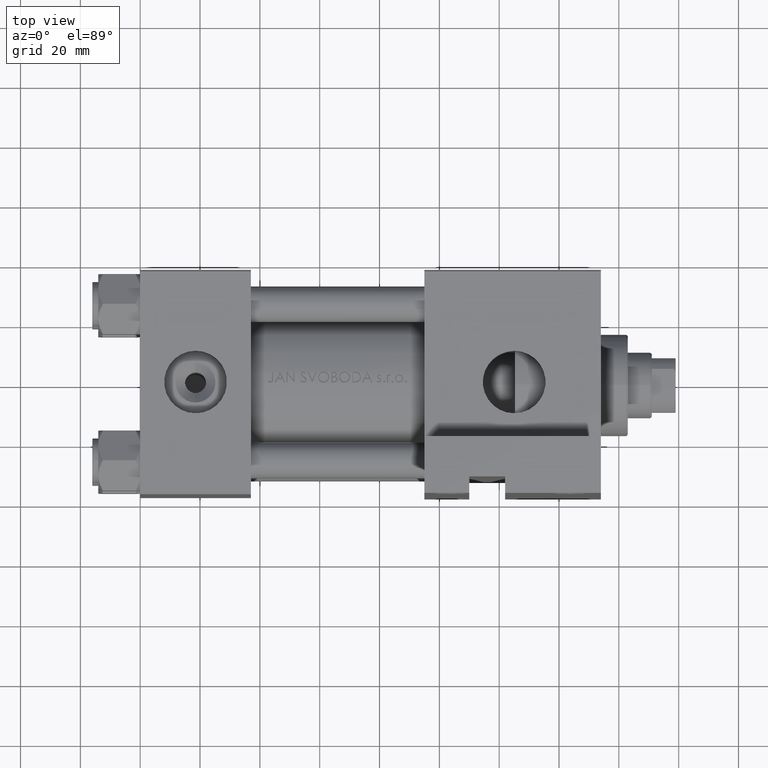
[diagram: clean part render]
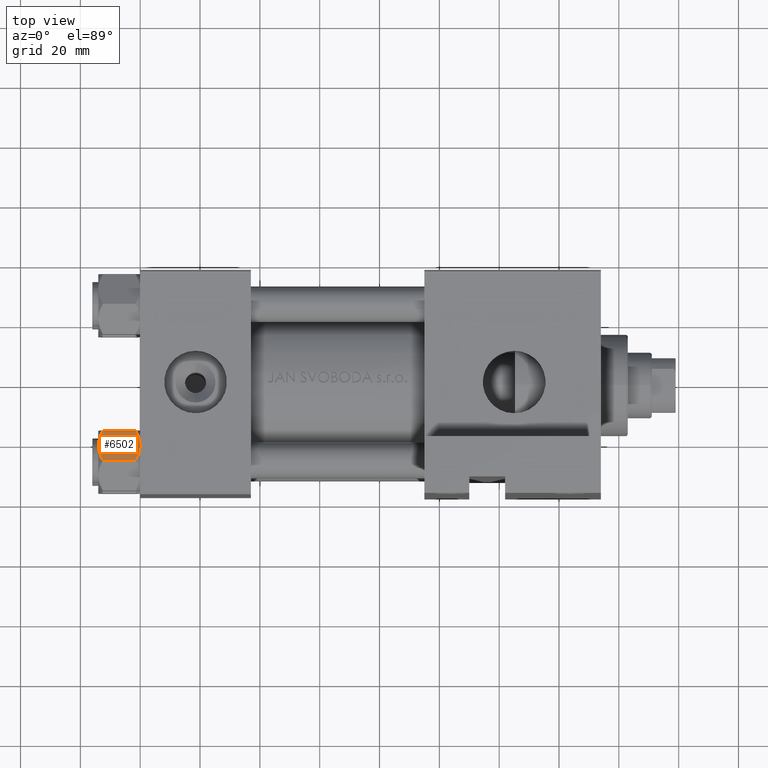
[diagram: same view with one face highlighted and labeled with its STEP entity id]
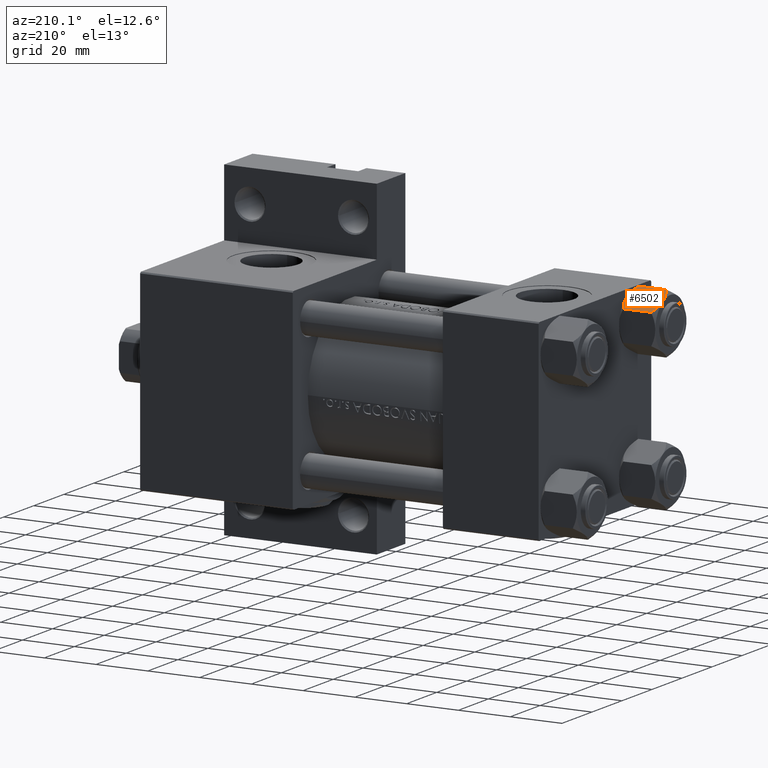
[diagram: same view with one face highlighted and labeled with its STEP entity id]
A machine part, top view. The second image highlights one B-rep face of the part: STEP entity #6502.
A second angle (auxiliary view) of the same face is appended — the face is thin or edge-on in the first view.
In plain terms, the highlighted planar face has unit normal (0, -0.5, -0.866).
Its self-contained STEP definition (entity closure, byte-faithful):
#554 = VERTEX_POINT ( 'NONE', #6987 ) ;
#937 = CARTESIAN_POINT ( 'NONE',  ( -11.61999999999999922, 6.288644352490894150E-15, -14.00000000000000000 ) ) ;
#1141 = CARTESIAN_POINT ( 'NONE',  ( -11.61999999999999922, 6.270720075409452187E-15, -1.556784808024810562 ) ) ;
#1276 = VERTEX_POINT ( 'NONE', #22606 ) ;
#1688 = B_SPLINE_CURVE_WITH_KNOTS ( 'NONE', 3,
 ( #1141, #16440, #28240, #43589, #24489, #12694, #28006, #9423 ),
 .UNSPECIFIED., .F., .F.,
 ( 4, 2, 2, 4 ),
 ( 2.544312114893457383E-07, 0.003011550106433538623, 0.004517197944044561847, 0.006022845781655586372 ),
 .UNSPECIFIED. ) ;
#1957 = VERTEX_POINT ( 'NONE', #29485 ) ;
#3110 = ORIENTED_EDGE ( 'NONE', *, *, #38992, .F. ) ;
#4695 = CARTESIAN_POINT ( 'NONE',  ( -6.265545725125283738, -9.274186850887380373, -12.89876091710046779 ) ) ;
#4716 = B_SPLINE_CURVE_WITH_KNOTS ( 'NONE', 3,
 ( #40492, #26346, #28924, #33626, #5578, #48966 ),
 .UNSPECIFIED., .F., .F.,
 ( 4, 2, 4 ),
 ( 0.006022845781655596781, 0.009013049135303641962, 0.01200325248895168714 ),
 .UNSPECIFIED. ) ;
#4762 = FACE_OUTER_BOUND ( 'NONE', #45144, .T. ) ;
#5316 = EDGE_CURVE ( 'NONE', #554, #11487, #22876, .T. ) ;
#5578 = CARTESIAN_POINT ( 'NONE',  ( -11.16498164529022219, -0.7881149087337223635, -12.89823354668505040 ) ) ;
#6502 = ADVANCED_FACE ( 'NONE', ( #4762 ), #16788, .F. ) ;
#6987 = CARTESIAN_POINT ( 'NONE',  ( -8.715000000000006963, -5.031607595987586556, 0.000000000000000000 ) ) ;
#7369 = DIRECTION ( 'NONE',  ( -0.000000000000000000, -0.000000000000000000, 1.000000000000000000 ) ) ;
#8221 = LINE ( 'NONE', #937, #40331 ) ;
#8335 = VERTEX_POINT ( 'NONE', #46448 ) ;
#9423 = CARTESIAN_POINT ( 'NONE',  ( -8.715000000000006963, -5.031607595987586556, 0.000000000000000000 ) ) ;
#11193 = ORIENTED_EDGE ( 'NONE', *, *, #14947, .F. ) ;
#11487 = VERTEX_POINT ( 'NONE', #23707 ) ;
#11499 = DIRECTION ( 'NONE',  ( -0.000000000000000000, -0.000000000000000000, 1.000000000000000000 ) ) ;
#11987 = CARTESIAN_POINT ( 'NONE',  ( -5.810000000000000497, -10.06321519197517844, -12.44321519197518633 ) ) ;
#12304 = DIRECTION ( 'NONE',  ( 0.8660254037844390407, 0.4999999999999995004, 0.000000000000000000 ) ) ;
#12694 = CARTESIAN_POINT ( 'NONE',  ( -9.227666995912100489, -4.143642311704120118, -0.03994118060690279165 ) ) ;
#12727 = CARTESIAN_POINT ( 'NONE',  ( -7.455303369716809847, -7.213466161761383333, -13.69973261901326644 ) ) ;
#12964 = CARTESIAN_POINT ( 'NONE',  ( -8.202333004087902779, -5.919572880271047666, -13.96005881939309745 ) ) ;
#13079 = AXIS2_PLACEMENT_3D ( 'NONE', #35649, #12304, #32367 ) ;
#14947 = EDGE_CURVE ( 'NONE', #8335, #1957, #8221, .T. ) ;
#15117 = CARTESIAN_POINT ( 'NONE',  ( -6.265018354709776638, -9.275100283241451748, -1.101766453314952043 ) ) ;
#16440 = CARTESIAN_POINT ( 'NONE',  ( -11.16445427487471420, -0.7890283410877914072, -1.101239082899528432 ) ) ;
#16788 = PLANE ( 'NONE',  #13079 ) ;
#19630 = CARTESIAN_POINT ( 'NONE',  ( -8.715000000000006963, -5.031607595987586556, 0.000000000000000000 ) ) ;
#20085 = B_SPLINE_CURVE_WITH_KNOTS ( 'NONE', 3,
 ( #11987, #4695, #43141, #12727, #28038, #12964, #43374, #31068 ),
 .UNSPECIFIED., .F., .F.,
 ( 4, 2, 2, 4 ),
 ( 2.544312114906334931E-07, 0.003011550106433543393, 0.004517197944044570521, 0.006022845781655596781 ),
 .UNSPECIFIED. ) ;
#21247 = CARTESIAN_POINT ( 'NONE',  ( -5.810000000000000497, -10.06321519197517844, -12.44321519197518633 ) ) ;
#22421 = CARTESIAN_POINT ( 'NONE',  ( -5.810000000000000497, -10.06321519197517844, -1.556784808024813893 ) ) ;
#22451 = LINE ( 'NONE', #30967, #30763 ) ;
#22606 = CARTESIAN_POINT ( 'NONE',  ( -8.715000000000006963, -5.031607595987586556, -14.00000000000000000 ) ) ;
#22876 = B_SPLINE_CURVE_WITH_KNOTS ( 'NONE', 3,
 ( #19630, #30442, #49573, #41768, #15117, #22421 ),
 .UNSPECIFIED., .F., .F.,
 ( 4, 2, 4 ),
 ( 0.006022845781655586372, 0.009013049135303635023, 0.01200325248895168367 ),
 .UNSPECIFIED. ) ;
#23317 = ORIENTED_EDGE ( 'NONE', *, *, #38427, .F. ) ;
#23707 = CARTESIAN_POINT ( 'NONE',  ( -5.810000000000000497, -10.06321519197517844, -1.556784808024813893 ) ) ;
#24489 = CARTESIAN_POINT ( 'NONE',  ( -9.729165168613654657, -3.275021996682076608, -0.1903979688073365595 ) ) ;
#24633 = VERTEX_POINT ( 'NONE', #21247 ) ;
#25441 = ORIENTED_EDGE ( 'NONE', *, *, #39054, .T. ) ;
#26346 = CARTESIAN_POINT ( 'NONE',  ( -9.220295946303428636, -4.156409344131446026, -14.00000000000000711 ) ) ;
#28006 = CARTESIAN_POINT ( 'NONE',  ( -8.969430103550386946, -4.590921729663310025, 6.662949392646161370E-15 ) ) ;
#28038 = CARTESIAN_POINT ( 'NONE',  ( -7.700834831386346835, -6.788193195293090731, -13.80960203119266438 ) ) ;
#28240 = CARTESIAN_POINT ( 'NONE',  ( -10.69859855102500923, -1.595914123792257611, -0.7141438259524607313 ) ) ;
#28633 = EDGE_CURVE ( 'NONE', #24633, #1276, #20085, .T. ) ;
#28924 = CARTESIAN_POINT ( 'NONE',  ( -9.716999946243698005, -3.296092779912219939, -13.84547602999602667 ) ) ;
#29485 = CARTESIAN_POINT ( 'NONE',  ( -11.61999999999999922, 6.270720075409452187E-15, -1.556784808024810562 ) ) ;
#30442 = CARTESIAN_POINT ( 'NONE',  ( -8.209704053696567527, -5.906805847843720869, 6.159623592433269699E-15 ) ) ;
#30763 = VECTOR ( 'NONE', #7369, 1000.000000000000000 ) ;
#30967 = CARTESIAN_POINT ( 'NONE',  ( -5.810000000000000497, -10.06321519197517844, -14.00000000000000000 ) ) ;
#31068 = CARTESIAN_POINT ( 'NONE',  ( -8.715000000000006963, -5.031607595987586556, -14.00000000000000000 ) ) ;
#31088 = ORIENTED_EDGE ( 'NONE', *, *, #28633, .F. ) ;
#31453 = ORIENTED_EDGE ( 'NONE', *, *, #5316, .F. ) ;
#32367 = DIRECTION ( 'NONE',  ( -0.4999999999999994449, 0.8660254037844389297, 0.000000000000000000 ) ) ;
#33626 = CARTESIAN_POINT ( 'NONE',  ( -10.69662495661650148, -1.599332489581326344, -13.28854452935655317 ) ) ;
#35649 = CARTESIAN_POINT ( 'NONE',  ( -5.810000000000000497, -10.06321519197517844, -14.00000000000000000 ) ) ;
#38427 = EDGE_CURVE ( 'NONE', #1276, #8335, #4716, .T. ) ;
#38992 = EDGE_CURVE ( 'NONE', #1957, #554, #1688, .T. ) ;
#39054 = EDGE_CURVE ( 'NONE', #24633, #11487, #22451, .T. ) ;
#40331 = VECTOR ( 'NONE', #11499, 1000.000000000000000 ) ;
#40492 = CARTESIAN_POINT ( 'NONE',  ( -8.715000000000006963, -5.031607595987586556, -14.00000000000000000 ) ) ;
#41768 = CARTESIAN_POINT ( 'NONE',  ( -6.733375043383495573, -8.463882702393842550, -0.7114554706434480513 ) ) ;
#43141 = CARTESIAN_POINT ( 'NONE',  ( -6.731401448974989599, -8.467301068182909063, -13.28585617404753272 ) ) ;
#43374 = CARTESIAN_POINT ( 'NONE',  ( -8.460569896449619876, -5.472293462311856871, -14.00000000000000888 ) ) ;
#43589 = CARTESIAN_POINT ( 'NONE',  ( -9.974696630283190757, -2.849749030213787115, -0.3002673809867329457 ) ) ;
#45144 = EDGE_LOOP ( 'NONE', ( #31088, #25441, #31453, #3110, #11193, #23317 ) ) ;
#46448 = CARTESIAN_POINT ( 'NONE',  ( -11.61999999999999922, 6.270720075510426383E-15, -12.44321519197518988 ) ) ;
#48966 = CARTESIAN_POINT ( 'NONE',  ( -11.61999999999999922, 6.270720075510426383E-15, -12.44321519197518988 ) ) ;
#49573 = CARTESIAN_POINT ( 'NONE',  ( -7.713000053756304375, -6.767122412062951398, -0.1545239700039803266 ) ) ;